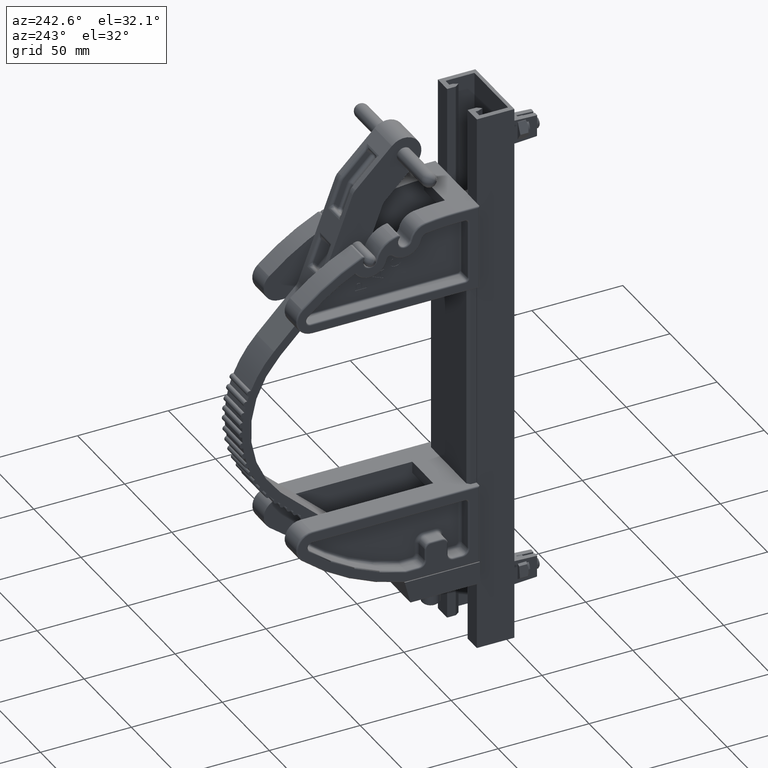
[diagram: clean part render]
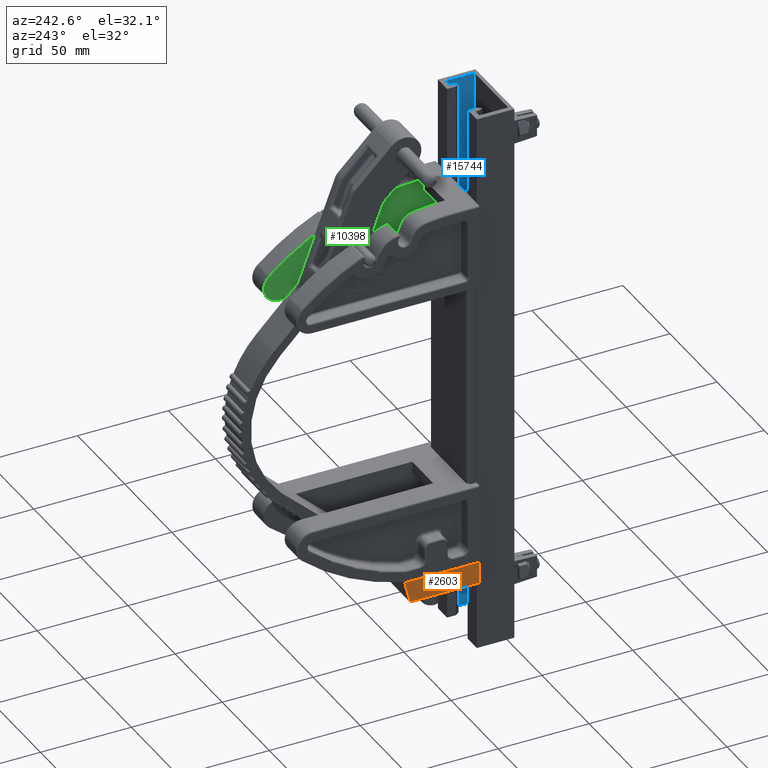
[diagram: same view with three faces highlighted in distinct colors, each labeled with its STEP entity id]
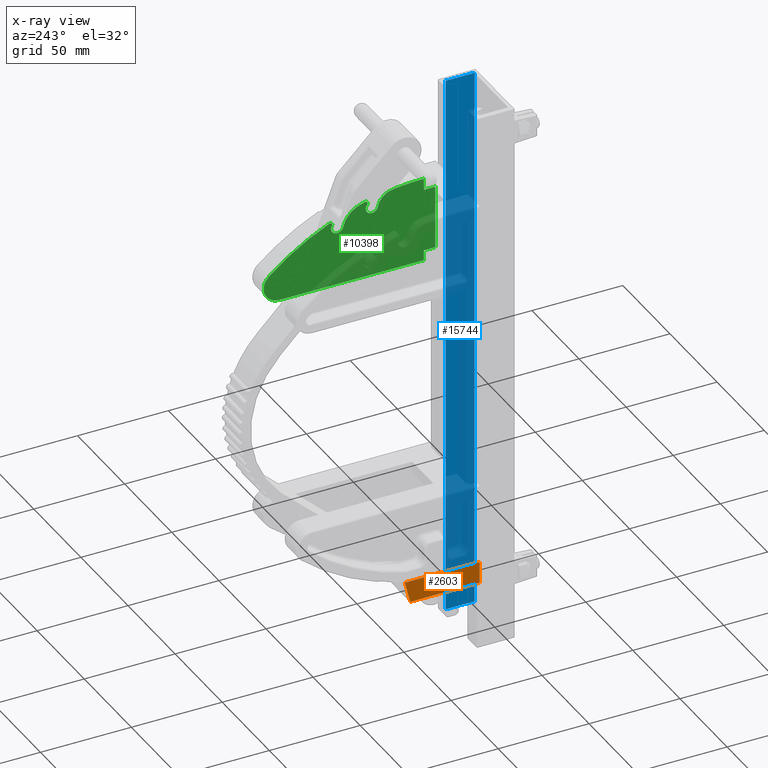
[diagram: x-ray of the same camera — body ghosted, the three highlighted faces saturated]
A machine part, auxiliary view with three faces highlighted in distinct colors.
The next image is the same camera in x-ray (body ghosted, the three faces saturated) — at least one of them is partly hidden behind the body in this view.
Their STEP definitions:

[orange] entity #2603 — the highlighted planar face has unit normal (-1, -0, -0).
#1087 = EDGE_LOOP ( 'NONE', ( #17752, #28381, #25698, #29580 ) ) ;
#1707 = VERTEX_POINT ( 'NONE', #31642 ) ;
#1810 = VECTOR ( 'NONE', #17621, 39.37007874015748100 ) ;
#2142 = DIRECTION ( 'NONE',  ( -3.204747427460360500E-031, -3.142017722620903200E-031, 1.000000000000000000 ) ) ;
#2603 = ADVANCED_FACE ( 'NONE', ( #22897 ), #35939, .T. ) ;
#5648 = VERTEX_POINT ( 'NONE', #31787 ) ;
#7850 = CARTESIAN_POINT ( 'NONE',  ( 0.0000000000000000000, 0.0000000000000000000, 0.9374999999999990000 ) ) ;
#9522 = CARTESIAN_POINT ( 'NONE',  ( -0.4999999999999996100, -6.829619984160658000E-016, 0.9375000000000000000 ) ) ;
#10454 = CARTESIAN_POINT ( 'NONE',  ( 0.0000000000000000000, 0.0000000000000000000, 0.9374999999999990000 ) ) ;
#10737 = CARTESIAN_POINT ( 'NONE',  ( 0.0000000000000000000, 1.625000000000000200, 0.9374999999999990000 ) ) ;
#12289 = LINE ( 'NONE', #29867, #26449 ) ;
#12457 = EDGE_CURVE ( 'NONE', #14210, #19166, #12289, .T. ) ;
#13027 = DIRECTION ( 'NONE',  ( 3.204747427460360500E-031, 1.000000000000000000, -3.142017722620904100E-031 ) ) ;
#13801 = VECTOR ( 'NONE', #14783, 39.37007874015748900 ) ;
#14210 = VERTEX_POINT ( 'NONE', #7850 ) ;
#14783 = DIRECTION ( 'NONE',  ( -0.9701425001453318800, -0.2425356250363327500, -3.204747427460360000E-031 ) ) ;
#15337 = DIRECTION ( 'NONE',  ( 1.000000000000000000, 3.204747427460360500E-031, 3.204747427460360500E-031 ) ) ;
#16863 = EDGE_CURVE ( 'NONE', #5648, #14210, #20115, .T. ) ;
#16940 = LINE ( 'NONE', #23308, #1810 ) ;
#17621 = DIRECTION ( 'NONE',  ( 1.365923996832128400E-016, -1.000000000000000000, 3.210324924722874900E-031 ) ) ;
#17648 = EDGE_CURVE ( 'NONE', #19166, #1707, #21348, .T. ) ;
#17752 = ORIENTED_EDGE ( 'NONE', *, *, #17648, .T. ) ;
#19166 = VERTEX_POINT ( 'NONE', #10737 ) ;
#20115 = LINE ( 'NONE', #9522, #26663 ) ;
#21348 = LINE ( 'NONE', #23211, #13801 ) ;
#22000 = DIRECTION ( 'NONE',  ( 1.000000000000000000, 3.204747427460360500E-031, 3.204747427460360500E-031 ) ) ;
#22301 = EDGE_CURVE ( 'NONE', #1707, #5648, #16940, .T. ) ;
#22897 = FACE_OUTER_BOUND ( 'NONE', #1087, .T. ) ;
#23211 = CARTESIAN_POINT ( 'NONE',  ( 0.0000000000000000000, 1.625000000000000200, 0.9374999999999990000 ) ) ;
#23308 = CARTESIAN_POINT ( 'NONE',  ( -0.4700000000000002000, -6.829619984160658000E-016, 0.9375000000000000000 ) ) ;
#25698 = ORIENTED_EDGE ( 'NONE', *, *, #16863, .T. ) ;
#26449 = VECTOR ( 'NONE', #13027, 39.37007874015748100 ) ;
#26663 = VECTOR ( 'NONE', #15337, 39.37007874015748100 ) ;
#28381 = ORIENTED_EDGE ( 'NONE', *, *, #22301, .T. ) ;
#29580 = ORIENTED_EDGE ( 'NONE', *, *, #12457, .T. ) ;
#29867 = CARTESIAN_POINT ( 'NONE',  ( 0.0000000000000000000, 0.0000000000000000000, 0.9374999999999990000 ) ) ;
#30027 = AXIS2_PLACEMENT_3D ( 'NONE', #10454, #2142, #22000 ) ;
#31642 = CARTESIAN_POINT ( 'NONE',  ( -0.4700000000000002000, 1.507500000000000300, 0.9374999999999982200 ) ) ;
#31787 = CARTESIAN_POINT ( 'NONE',  ( -0.4700000000000002000, -6.829619984160658000E-016, 0.9375000000000000000 ) ) ;
#35939 = PLANE ( 'NONE',  #30027 ) ;

[blue] entity #15744 — the highlighted planar face has unit normal (1, 0, 0).
#4417 = VECTOR ( 'NONE', #19691, 39.37007874015748100 ) ;
#4678 = EDGE_LOOP ( 'NONE', ( #33059, #15584, #11921, #15089 ) ) ;
#4817 = CARTESIAN_POINT ( 'NONE',  ( 0.7035000000000000100, 0.7030000000000000700, -6.000000000000000900 ) ) ;
#5544 = LINE ( 'NONE', #26549, #26370 ) ;
#5809 = VECTOR ( 'NONE', #6986, 39.37007874015748100 ) ;
#6986 = DIRECTION ( 'NONE',  ( -0.0000000000000000000, -0.0000000000000000000, -1.000000000000000000 ) ) ;
#8257 = AXIS2_PLACEMENT_3D ( 'NONE', #27011, #29792, #12954 ) ;
#11921 = ORIENTED_EDGE ( 'NONE', *, *, #27531, .F. ) ;
#12738 = CARTESIAN_POINT ( 'NONE',  ( 0.7035000000000000100, 0.7030000000000000700, -6.000000000000000900 ) ) ;
#12826 = PLANE ( 'NONE',  #8257 ) ;
#12954 = DIRECTION ( 'NONE',  ( -2.185478394931410800E-016, 1.000000000000000000, 0.0000000000000000000 ) ) ;
#15043 = VERTEX_POINT ( 'NONE', #23902 ) ;
#15089 = ORIENTED_EDGE ( 'NONE', *, *, #36198, .T. ) ;
#15144 = LINE ( 'NONE', #12738, #21793 ) ;
#15584 = ORIENTED_EDGE ( 'NONE', *, *, #32185, .F. ) ;
#15744 = ADVANCED_FACE ( 'NONE', ( #34533 ), #12826, .F. ) ;
#18672 = LINE ( 'NONE', #36432, #4417 ) ;
#19691 = DIRECTION ( 'NONE',  ( 2.185478394931410600E-016, -1.000000000000000000, 0.0000000000000000000 ) ) ;
#20209 = VERTEX_POINT ( 'NONE', #4817 ) ;
#21793 = VECTOR ( 'NONE', #35129, 39.37007874015748100 ) ;
#22395 = EDGE_CURVE ( 'NONE', #20209, #25596, #15144, .T. ) ;
#23902 = CARTESIAN_POINT ( 'NONE',  ( 0.7035000000000001300, 0.07800000000000006900, 6.000000000000000900 ) ) ;
#24893 = CARTESIAN_POINT ( 'NONE',  ( 0.7035000000000001300, 0.07800000000000006900, -6.000000000000000900 ) ) ;
#25596 = VERTEX_POINT ( 'NONE', #24893 ) ;
#26370 = VECTOR ( 'NONE', #29319, 39.37007874015748100 ) ;
#26549 = CARTESIAN_POINT ( 'NONE',  ( 0.7035000000000001300, 0.07800000000000006900, 6.000000000000000900 ) ) ;
#26754 = CARTESIAN_POINT ( 'NONE',  ( 0.7035000000000000100, 0.7030000000000000700, 6.000000000000000900 ) ) ;
#27011 = CARTESIAN_POINT ( 'NONE',  ( 0.7035000000000000100, 0.7030000000000000700, 6.000000000000000900 ) ) ;
#27531 = EDGE_CURVE ( 'NONE', #35084, #15043, #18672, .T. ) ;
#29319 = DIRECTION ( 'NONE',  ( -0.0000000000000000000, -0.0000000000000000000, -1.000000000000000000 ) ) ;
#29792 = DIRECTION ( 'NONE',  ( 1.000000000000000000, 2.185478394931410800E-016, -0.0000000000000000000 ) ) ;
#32185 = EDGE_CURVE ( 'NONE', #15043, #25596, #5544, .T. ) ;
#33059 = ORIENTED_EDGE ( 'NONE', *, *, #22395, .T. ) ;
#34533 = FACE_OUTER_BOUND ( 'NONE', #4678, .T. ) ;
#34789 = CARTESIAN_POINT ( 'NONE',  ( 0.7035000000000000100, 0.7030000000000000700, 6.000000000000000900 ) ) ;
#34909 = LINE ( 'NONE', #26754, #5809 ) ;
#35084 = VERTEX_POINT ( 'NONE', #34789 ) ;
#35129 = DIRECTION ( 'NONE',  ( 2.185478394931410600E-016, -1.000000000000000000, 0.0000000000000000000 ) ) ;
#36198 = EDGE_CURVE ( 'NONE', #35084, #20209, #34909, .T. ) ;
#36432 = CARTESIAN_POINT ( 'NONE',  ( 0.7035000000000000100, 0.7030000000000000700, 6.000000000000000900 ) ) ;

[green] entity #10398 — the highlighted planar face has unit normal (1, -0, 0).
#579 = EDGE_CURVE ( 'NONE', #29056, #35833, #31726, .T. ) ;
#607 = EDGE_CURVE ( 'NONE', #1111, #34952, #30851, .T. ) ;
#1111 = VERTEX_POINT ( 'NONE', #2630 ) ;
#1273 = AXIS2_PLACEMENT_3D ( 'NONE', #30777, #13944, #33599 ) ;
#1931 = PLANE ( 'NONE',  #32257 ) ;
#1975 = VERTEX_POINT ( 'NONE', #21341 ) ;
#2055 = DIRECTION ( 'NONE',  ( -2.081668171172173000E-016, 3.753504199923266500E-016, 1.000000000000000000 ) ) ;
#2108 = CARTESIAN_POINT ( 'NONE',  ( -1.288517599682702700, 2.245423559271817000, 0.4375000000000015500 ) ) ;
#2402 = CIRCLE ( 'NONE', #28849, 5.125000000000000000 ) ;
#2445 = VERTEX_POINT ( 'NONE', #15684 ) ;
#2556 = VERTEX_POINT ( 'NONE', #13182 ) ;
#2630 = CARTESIAN_POINT ( 'NONE',  ( -1.714287146581897000, 1.773372736586494900, 0.4375000000000015500 ) ) ;
#2635 = VERTEX_POINT ( 'NONE', #27716 ) ;
#3121 = ORIENTED_EDGE ( 'NONE', *, *, #19076, .F. ) ;
#4154 = CARTESIAN_POINT ( 'NONE',  ( 3.250000000000011500, 0.5000000000000010000, 0.4374999999999993900 ) ) ;
#4696 = EDGE_CURVE ( 'NONE', #29670, #2445, #5332, .T. ) ;
#4916 = DIRECTION ( 'NONE',  ( 2.081668171172173000E-016, -3.753504199923266500E-016, -1.000000000000000000 ) ) ;
#5042 = CARTESIAN_POINT ( 'NONE',  ( 3.250000000000011500, 0.5000000000000010000, 0.4374999999999993900 ) ) ;
#5213 = AXIS2_PLACEMENT_3D ( 'NONE', #23493, #6504, #26308 ) ;
#5282 = EDGE_CURVE ( 'NONE', #32574, #1111, #32635, .T. ) ;
#5309 = EDGE_CURVE ( 'NONE', #11118, #13770, #10182, .T. ) ;
#5332 = LINE ( 'NONE', #34179, #20472 ) ;
#5351 = EDGE_CURVE ( 'NONE', #21934, #2635, #30914, .T. ) ;
#5739 = EDGE_CURVE ( 'NONE', #30764, #11118, #7961, .T. ) ;
#6485 = ORIENTED_EDGE ( 'NONE', *, *, #607, .F. ) ;
#6504 = DIRECTION ( 'NONE',  ( 2.081668171172173000E-016, -3.753504199923266500E-016, -1.000000000000000000 ) ) ;
#6517 = ORIENTED_EDGE ( 'NONE', *, *, #35089, .F. ) ;
#6519 = EDGE_CURVE ( 'NONE', #2445, #13770, #7456, .T. ) ;
#6663 = DIRECTION ( 'NONE',  ( 1.000000000000000000, 1.544886832538153800E-016, -2.081668171172162800E-016 ) ) ;
#6691 = CARTESIAN_POINT ( 'NONE',  ( -0.6277702278904441200, 3.850898843547277700, 0.4375000000000023900 ) ) ;
#7042 = DIRECTION ( 'NONE',  ( 0.0000000000000000000, -1.000000000000000000, -5.463695987328526400E-016 ) ) ;
#7456 = LINE ( 'NONE', #28857, #22551 ) ;
#7865 = CIRCLE ( 'NONE', #36366, 0.5397323390364063800 ) ;
#7936 = DIRECTION ( 'NONE',  ( 0.0000000000000000000, -1.000000000000000000, -5.463695987328526400E-016 ) ) ;
#7961 = CIRCLE ( 'NONE', #30403, 0.3419999999999998000 ) ;
#8259 = DIRECTION ( 'NONE',  ( 3.164621508233272000E-017, 1.000000000000000000, 6.192242458335580200E-016 ) ) ;
#8369 = ORIENTED_EDGE ( 'NONE', *, *, #22816, .F. ) ;
#8465 = EDGE_CURVE ( 'NONE', #24894, #32574, #7865, .T. ) ;
#8614 = CARTESIAN_POINT ( 'NONE',  ( -1.690635737369612400, 1.862256771180178500, 0.4375000000000015500 ) ) ;
#8710 = ORIENTED_EDGE ( 'NONE', *, *, #22857, .F. ) ;
#8737 = EDGE_CURVE ( 'NONE', #2556, #24894, #16727, .T. ) ;
#8964 = CARTESIAN_POINT ( 'NONE',  ( -1.715698283831423000, 1.762191902801832200, 0.4375000000000015500 ) ) ;
#9200 = EDGE_CURVE ( 'NONE', #30764, #29056, #36016, .T. ) ;
#9400 = CARTESIAN_POINT ( 'NONE',  ( -1.670698283831422200, 1.762191902801832500, 0.4375000000000015500 ) ) ;
#10182 = LINE ( 'NONE', #13238, #25271 ) ;
#10209 = LINE ( 'NONE', #29224, #16895 ) ;
#10239 = AXIS2_PLACEMENT_3D ( 'NONE', #27162, #10259, #29945 ) ;
#10259 = DIRECTION ( 'NONE',  ( -2.081668171172173000E-016, 3.753504199923266500E-016, 1.000000000000000000 ) ) ;
#10398 = ADVANCED_FACE ( 'NONE', ( #16631 ), #1931, .F. ) ;
#10534 = EDGE_CURVE ( 'NONE', #19577, #1975, #13956, .T. ) ;
#10716 = ORIENTED_EDGE ( 'NONE', *, *, #5309, .T. ) ;
#11118 = VERTEX_POINT ( 'NONE', #34088 ) ;
#12224 = DIRECTION ( 'NONE',  ( 0.0000000000000000000, -1.000000000000000000, 0.0000000000000000000 ) ) ;
#12400 = CARTESIAN_POINT ( 'NONE',  ( -1.458439361981939800, 1.126975896298330300, 0.4375000000000007800 ) ) ;
#12771 = EDGE_LOOP ( 'NONE', ( #6517, #27514, #8369, #6485, #15176, #16195, #18154, #30199, #33303, #19197, #25641, #10716, #29776, #32072, #14730, #22999, #8710, #3121 ) ) ;
#13072 = CARTESIAN_POINT ( 'NONE',  ( -1.170319467543784200, 1.718792569526075700, 0.4375000000000015500 ) ) ;
#13109 = DIRECTION ( 'NONE',  ( -2.081668171172173000E-016, 3.753504199923266500E-016, 1.000000000000000000 ) ) ;
#13182 = CARTESIAN_POINT ( 'NONE',  ( -1.384714271343563000, 2.489592820813619300, 0.4375000000000016100 ) ) ;
#13238 = CARTESIAN_POINT ( 'NONE',  ( -0.02700000000000001400, 4.390713233934498300, 0.4375000000000024400 ) ) ;
#13737 = DIRECTION ( 'NONE',  ( 1.000000000000000000, 3.164621508233261500E-017, -2.081668171172163100E-016 ) ) ;
#13770 = VERTEX_POINT ( 'NONE', #19247 ) ;
#13944 = DIRECTION ( 'NONE',  ( -2.081668171172173000E-016, 3.753504199923266500E-016, 1.000000000000000000 ) ) ;
#13956 = LINE ( 'NONE', #28003, #28037 ) ;
#14730 = ORIENTED_EDGE ( 'NONE', *, *, #25631, .F. ) ;
#15176 = ORIENTED_EDGE ( 'NONE', *, *, #5282, .F. ) ;
#15261 = DIRECTION ( 'NONE',  ( 0.0000000000000000000, -1.000000000000000000, -5.463695987328524500E-016 ) ) ;
#15684 = CARTESIAN_POINT ( 'NONE',  ( -0.2500000000000003300, 0.5000000000000004400, 0.4375000000000000000 ) ) ;
#15902 = CARTESIAN_POINT ( 'NONE',  ( -1.642073858789723000, 1.727469542700130800, 0.4375000000000015500 ) ) ;
#15949 = DIRECTION ( 'NONE',  ( 0.0000000000000000000, -1.000000000000000000, -5.061486585260908000E-016 ) ) ;
#15963 = DIRECTION ( 'NONE',  ( 2.081668171172173000E-016, -3.753504199923266500E-016, -1.000000000000000000 ) ) ;
#16195 = ORIENTED_EDGE ( 'NONE', *, *, #8465, .F. ) ;
#16223 = DIRECTION ( 'NONE',  ( -2.081668171172173000E-016, -5.508868723988736900E-016, 1.000000000000000000 ) ) ;
#16631 = FACE_OUTER_BOUND ( 'NONE', #12771, .T. ) ;
#16727 = CIRCLE ( 'NONE', #5213, 0.1327999999999992000 ) ;
#16895 = VECTOR ( 'NONE', #6663, 39.37007874015748100 ) ;
#16958 = AXIS2_PLACEMENT_3D ( 'NONE', #19097, #2055, #21927 ) ;
#17422 = DIRECTION ( 'NONE',  ( 3.164621508233272000E-017, 1.000000000000000000, 6.192242458335580200E-016 ) ) ;
#17712 = DIRECTION ( 'NONE',  ( 1.000000000000000000, 1.544886832538153800E-016, -2.081668171172162800E-016 ) ) ;
#18154 = ORIENTED_EDGE ( 'NONE', *, *, #8737, .F. ) ;
#18197 = CARTESIAN_POINT ( 'NONE',  ( -1.625000000000003100, 0.2499999999999998100, 0.4375000000000006100 ) ) ;
#18394 = AXIS2_PLACEMENT_3D ( 'NONE', #29956, #13109, #32779 ) ;
#18680 = CIRCLE ( 'NONE', #24220, 0.04500000000000074800 ) ;
#19076 = EDGE_CURVE ( 'NONE', #29141, #25892, #2402, .T. ) ;
#19097 = CARTESIAN_POINT ( 'NONE',  ( -1.670698283831422200, 1.762191902801832500, 0.4375000000000015500 ) ) ;
#19197 = ORIENTED_EDGE ( 'NONE', *, *, #9200, .F. ) ;
#19247 = CARTESIAN_POINT ( 'NONE',  ( -0.02699999999999946500, 0.5000000000000004400, 0.4375000000000000600 ) ) ;
#19577 = VERTEX_POINT ( 'NONE', #18197 ) ;
#19828 = AXIS2_PLACEMENT_3D ( 'NONE', #21933, #4916, #24774 ) ;
#20310 = CARTESIAN_POINT ( 'NONE',  ( -0.2500000000000003300, 0.2499999999999999200, 0.4374999999999998900 ) ) ;
#20472 = VECTOR ( 'NONE', #17422, 39.37007874015748100 ) ;
#20589 = CARTESIAN_POINT ( 'NONE',  ( -1.448713300898039100, 2.546391535352863700, 0.4375000000000016100 ) ) ;
#21341 = CARTESIAN_POINT ( 'NONE',  ( -1.625000000000003100, 0.5000000000000004400, 0.4375000000000006700 ) ) ;
#21927 = DIRECTION ( 'NONE',  ( 0.0000000000000000000, -1.000000000000000000, 0.0000000000000000000 ) ) ;
#21933 = CARTESIAN_POINT ( 'NONE',  ( -1.557600000000002500, 1.624999999999999600, 0.4375000000000015000 ) ) ;
#21934 = VERTEX_POINT ( 'NONE', #15902 ) ;
#22551 = VECTOR ( 'NONE', #17712, 39.37007874015748100 ) ;
#22581 = AXIS2_PLACEMENT_3D ( 'NONE', #5042, #24911, #7936 ) ;
#22816 = EDGE_CURVE ( 'NONE', #34952, #21934, #18680, .T. ) ;
#22857 = EDGE_CURVE ( 'NONE', #25892, #1975, #10209, .T. ) ;
#22999 = ORIENTED_EDGE ( 'NONE', *, *, #10534, .T. ) ;
#23185 = CIRCLE ( 'NONE', #30949, 0.3750000000000001100 ) ;
#23493 = CARTESIAN_POINT ( 'NONE',  ( -1.317600000000000800, 2.374999999999999600, 0.4375000000000015500 ) ) ;
#24028 = DIRECTION ( 'NONE',  ( -2.081668171172173000E-016, 3.753504199923266500E-016, 1.000000000000000000 ) ) ;
#24220 = AXIS2_PLACEMENT_3D ( 'NONE', #9400, #29094, #12224 ) ;
#24774 = DIRECTION ( 'NONE',  ( -2.057114453060439100E-015, -1.000000000000000000, -5.142786132651097800E-016 ) ) ;
#24894 = VERTEX_POINT ( 'NONE', #2108 ) ;
#24911 = DIRECTION ( 'NONE',  ( -2.081668171172173000E-016, 3.753504199923266500E-016, 1.000000000000000000 ) ) ;
#25004 = CARTESIAN_POINT ( 'NONE',  ( -0.2500000000000003300, 0.2499999999999999200, 0.4374999999999998900 ) ) ;
#25271 = VECTOR ( 'NONE', #35753, 39.37007874015748100 ) ;
#25631 = EDGE_CURVE ( 'NONE', #19577, #29670, #25987, .T. ) ;
#25641 = ORIENTED_EDGE ( 'NONE', *, *, #5739, .T. ) ;
#25892 = VERTEX_POINT ( 'NONE', #34489 ) ;
#25987 = LINE ( 'NONE', #25004, #35143 ) ;
#26126 = CARTESIAN_POINT ( 'NONE',  ( -1.830158258980517400, 1.176473993374514100, 0.4375000000000007800 ) ) ;
#26171 = EDGE_CURVE ( 'NONE', #35833, #2556, #27671, .T. ) ;
#26308 = DIRECTION ( 'NONE',  ( 0.0000000000000000000, -1.000000000000000000, -5.142786132651129400E-016 ) ) ;
#27162 = CARTESIAN_POINT ( 'NONE',  ( -1.407456306060884900, 2.528423219432692500, 0.4375000000000016100 ) ) ;
#27405 = CARTESIAN_POINT ( 'NONE',  ( -1.875000000000006000, 4.390713233934498300, 0.4375000000000031100 ) ) ;
#27514 = ORIENTED_EDGE ( 'NONE', *, *, #5351, .F. ) ;
#27671 = CIRCLE ( 'NONE', #1273, 0.04499999999999965800 ) ;
#27716 = CARTESIAN_POINT ( 'NONE',  ( -1.531667481825921300, 1.494756595172150600, 0.4375000000000007800 ) ) ;
#28003 = CARTESIAN_POINT ( 'NONE',  ( -1.625000000000003100, 0.2499999999999998100, 0.4375000000000006100 ) ) ;
#28037 = VECTOR ( 'NONE', #8259, 39.37007874015748100 ) ;
#28849 = AXIS2_PLACEMENT_3D ( 'NONE', #4154, #24028, #7042 ) ;
#28857 = CARTESIAN_POINT ( 'NONE',  ( -1.875000000000004000, 0.4999999999999998300, 0.4375000000000007200 ) ) ;
#29056 = VERTEX_POINT ( 'NONE', #20589 ) ;
#29094 = DIRECTION ( 'NONE',  ( -2.081668171172173000E-016, 3.753504199923266500E-016, 1.000000000000000000 ) ) ;
#29141 = VERTEX_POINT ( 'NONE', #26126 ) ;
#29224 = CARTESIAN_POINT ( 'NONE',  ( -1.875000000000004000, 0.4999999999999998300, 0.4375000000000007200 ) ) ;
#29670 = VERTEX_POINT ( 'NONE', #20310 ) ;
#29776 = ORIENTED_EDGE ( 'NONE', *, *, #6519, .F. ) ;
#29795 = CARTESIAN_POINT ( 'NONE',  ( -1.452456306060884800, 2.528423219432692500, 0.4375000000000016100 ) ) ;
#29945 = DIRECTION ( 'NONE',  ( 0.0000000000000000000, -1.000000000000000000, 0.0000000000000000000 ) ) ;
#29956 = CARTESIAN_POINT ( 'NONE',  ( 3.250000000000011500, 0.5000000000000010000, 0.4374999999999993900 ) ) ;
#30199 = ORIENTED_EDGE ( 'NONE', *, *, #26171, .F. ) ;
#30403 = AXIS2_PLACEMENT_3D ( 'NONE', #32756, #15963, #35593 ) ;
#30764 = VERTEX_POINT ( 'NONE', #6691 ) ;
#30777 = CARTESIAN_POINT ( 'NONE',  ( -1.407456306060884900, 2.528423219432692500, 0.4375000000000016100 ) ) ;
#30851 = CIRCLE ( 'NONE', #16958, 0.04500000000000074800 ) ;
#30914 = CIRCLE ( 'NONE', #19828, 0.1328000000000000000 ) ;
#30949 = AXIS2_PLACEMENT_3D ( 'NONE', #12400, #32074, #15261 ) ;
#31726 = CIRCLE ( 'NONE', #10239, 0.04499999999999965800 ) ;
#32072 = ORIENTED_EDGE ( 'NONE', *, *, #4696, .F. ) ;
#32074 = DIRECTION ( 'NONE',  ( -2.081668171172173000E-016, 3.753504199923266500E-016, 1.000000000000000000 ) ) ;
#32257 = AXIS2_PLACEMENT_3D ( 'NONE', #27405, #16223, #35861 ) ;
#32574 = VERTEX_POINT ( 'NONE', #8614 ) ;
#32635 = CIRCLE ( 'NONE', #18394, 5.125000000000000000 ) ;
#32743 = DIRECTION ( 'NONE',  ( -2.081668171172173000E-016, 3.753504199923266500E-016, 1.000000000000000000 ) ) ;
#32756 = CARTESIAN_POINT ( 'NONE',  ( -0.3689999999999998300, 3.627287642670562900, 0.4375000000000023900 ) ) ;
#32779 = DIRECTION ( 'NONE',  ( 0.0000000000000000000, -1.000000000000000000, -5.463695987328526400E-016 ) ) ;
#33303 = ORIENTED_EDGE ( 'NONE', *, *, #579, .F. ) ;
#33599 = DIRECTION ( 'NONE',  ( 0.0000000000000000000, -1.000000000000000000, 0.0000000000000000000 ) ) ;
#34088 = CARTESIAN_POINT ( 'NONE',  ( -0.02700000000000001400, 3.627287642670562900, 0.4375000000000016700 ) ) ;
#34179 = CARTESIAN_POINT ( 'NONE',  ( -0.2500000000000003300, 0.2499999999999999200, 0.4374999999999998900 ) ) ;
#34489 = CARTESIAN_POINT ( 'NONE',  ( -1.875000000000004000, 0.4999999999999998300, 0.4375000000000007200 ) ) ;
#34952 = VERTEX_POINT ( 'NONE', #8964 ) ;
#35089 = EDGE_CURVE ( 'NONE', #2635, #29141, #23185, .T. ) ;
#35143 = VECTOR ( 'NONE', #13737, 39.37007874015748100 ) ;
#35593 = DIRECTION ( 'NONE',  ( 7.987859630597265400E-016, -1.000000000000000000, -5.990894722947949300E-016 ) ) ;
#35753 = DIRECTION ( 'NONE',  ( 9.122930160225075800E-017, -1.000000000000000000, -5.508868723988736900E-016 ) ) ;
#35833 = VERTEX_POINT ( 'NONE', #29795 ) ;
#35861 = DIRECTION ( 'NONE',  ( -3.164621508233275700E-017, -1.000000000000000000, -5.508868723988736900E-016 ) ) ;
#36016 = CIRCLE ( 'NONE', #22581, 5.125000000000000000 ) ;
#36366 = AXIS2_PLACEMENT_3D ( 'NONE', #13072, #32743, #15949 ) ;